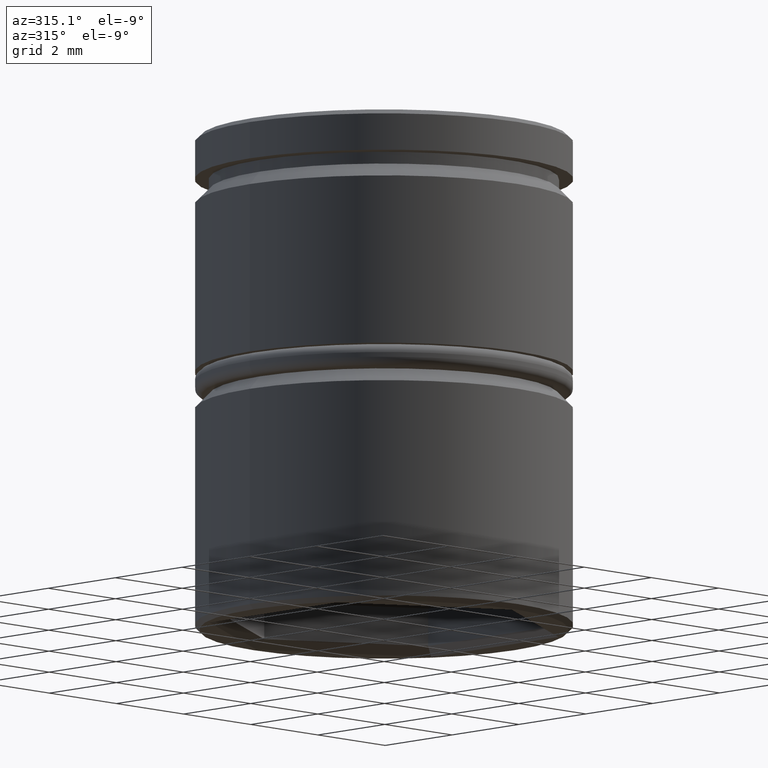
[diagram: clean part render]
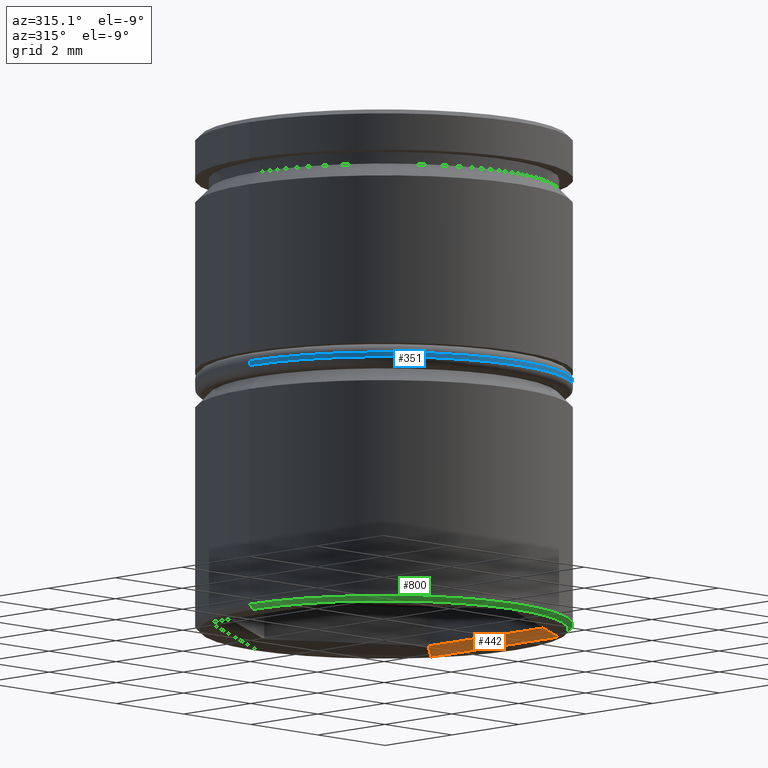
[diagram: same view with three faces highlighted in distinct colors, each labeled with its STEP entity id]
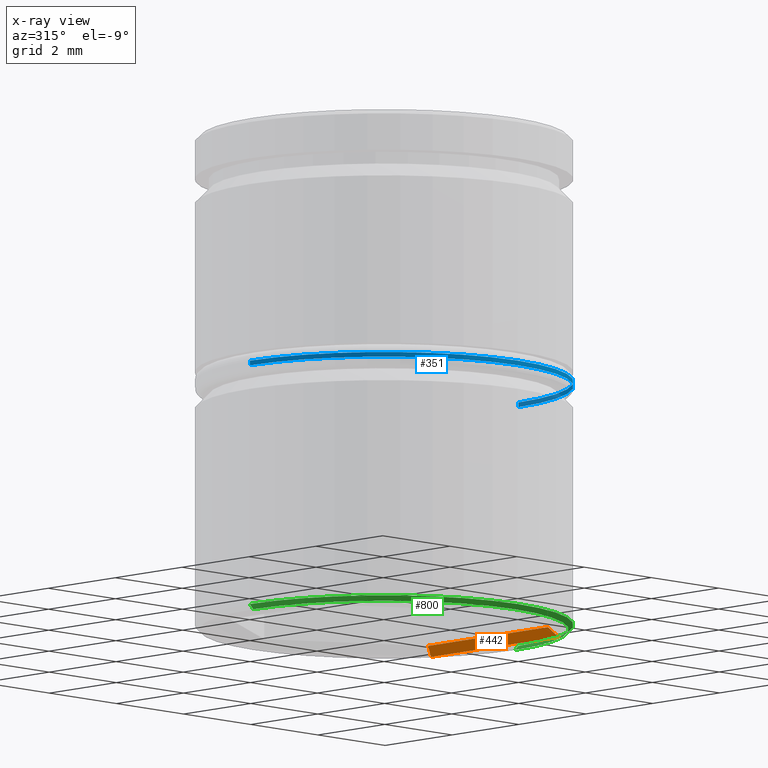
[diagram: x-ray of the same camera — body ghosted, the three highlighted faces saturated]
A machine part, auxiliary view with three faces highlighted in distinct colors.
The next image is the same camera in x-ray (body ghosted, the three faces saturated) — at least one of them is partly hidden behind the body in this view.
Their STEP definitions:

[orange] entity #442 — the highlighted planar face has unit normal (-0.7071, 0, -0.7071).
#3 = FACE_OUTER_BOUND ( 'NONE', #242, .T. ) ;
#66 = VERTEX_POINT ( 'NONE', #917 ) ;
#120 = CARTESIAN_POINT ( 'NONE',  ( 2.214285714285717077, 1.278418453205603544, -9.414285714285709261 ) ) ;
#203 = CARTESIAN_POINT ( 'NONE',  ( 3.299999999999999822, 1.905255888325763536, -10.50000000000000000 ) ) ;
#230 = EDGE_CURVE ( 'NONE', #66, #571, #798, .T. ) ;
#242 = EDGE_LOOP ( 'NONE', ( #928, #849, #968, #598 ) ) ;
#289 = EDGE_CURVE ( 'NONE', #464, #66, #335, .T. ) ;
#290 = DIRECTION ( 'NONE',  ( 0.6546536707079754214, 0.3779644730092244220, -0.6546536707079805284 ) ) ;
#335 = LINE ( 'NONE', #782, #616 ) ;
#359 = CARTESIAN_POINT ( 'NONE',  ( 3.299999999999999822, 1.789785834487839455, -10.50000000000000000 ) ) ;
#367 = AXIS2_PLACEMENT_3D ( 'NONE', #809, #911, #802 ) ;
#442 = ADVANCED_FACE ( 'NONE', ( #3 ), #916, .T. ) ;
#445 = DIRECTION ( 'NONE',  ( 1.211544031239644746E-16, 1.000000000000000000, 0.000000000000000000 ) ) ;
#464 = VERTEX_POINT ( 'NONE', #1001 ) ;
#470 = CARTESIAN_POINT ( 'NONE',  ( 3.100000000000000977, -1.789785834487840344, -10.30000000000000071 ) ) ;
#571 = VERTEX_POINT ( 'NONE', #737 ) ;
#590 = VERTEX_POINT ( 'NONE', #203 ) ;
#598 = ORIENTED_EDGE ( 'NONE', *, *, #289, .F. ) ;
#608 = DIRECTION ( 'NONE',  ( -1.211544031239644746E-16, -1.000000000000000000, 0.000000000000000000 ) ) ;
#616 = VECTOR ( 'NONE', #608, 1000.000000000000000 ) ;
#625 = LINE ( 'NONE', #359, #888 ) ;
#647 = LINE ( 'NONE', #120, #1054 ) ;
#737 = CARTESIAN_POINT ( 'NONE',  ( 3.299999999999999378, -1.905255888325763980, -10.50000000000000000 ) ) ;
#782 = CARTESIAN_POINT ( 'NONE',  ( 3.100000000000000977, -1.789785834487840344, -10.30000000000000071 ) ) ;
#798 = LINE ( 'NONE', #470, #1056 ) ;
#802 = DIRECTION ( 'NONE',  ( 1.211544031239644746E-16, 1.000000000000000000, 0.000000000000000000 ) ) ;
#809 = CARTESIAN_POINT ( 'NONE',  ( 3.100000000000000977, 1.789785834487839455, -10.30000000000000071 ) ) ;
#849 = ORIENTED_EDGE ( 'NONE', *, *, #890, .F. ) ;
#888 = VECTOR ( 'NONE', #445, 1000.000000000000000 ) ;
#890 = EDGE_CURVE ( 'NONE', #571, #590, #625, .T. ) ;
#911 = DIRECTION ( 'NONE',  ( -0.7071067811865503483, 8.566910001956425243E-17, -0.7071067811865447972 ) ) ;
#916 = PLANE ( 'NONE',  #367 ) ;
#917 = CARTESIAN_POINT ( 'NONE',  ( 3.100000000000000977, -1.789785834487840344, -10.30000000000000071 ) ) ;
#928 = ORIENTED_EDGE ( 'NONE', *, *, #995, .T. ) ;
#968 = ORIENTED_EDGE ( 'NONE', *, *, #230, .F. ) ;
#995 = EDGE_CURVE ( 'NONE', #464, #590, #647, .T. ) ;
#1001 = CARTESIAN_POINT ( 'NONE',  ( 3.100000000000000977, 1.789785834487839455, -10.30000000000000071 ) ) ;
#1009 = DIRECTION ( 'NONE',  ( 0.6546536707079758655, -0.3779644730092231453, -0.6546536707079808615 ) ) ;
#1054 = VECTOR ( 'NONE', #290, 999.9999999999998863 ) ;
#1056 = VECTOR ( 'NONE', #1009, 1000.000000000000000 ) ;

[blue] entity #351 — the highlighted cylindrical surface (partial cylindrical patch) has radius 4 mm, axis along (-0, -0, 1).
#15 = VECTOR ( 'NONE', #562, 1000.000000000000000 ) ;
#36 = CYLINDRICAL_SURFACE ( 'NONE', #368, 4.000000000000000000 ) ;
#54 = CARTESIAN_POINT ( 'NONE',  ( 0.000000000000000000, 0.000000000000000000, -5.299999999999998934 ) ) ;
#92 = CARTESIAN_POINT ( 'NONE',  ( 0.000000000000000000, 0.000000000000000000, -16.81370849898475939 ) ) ;
#97 = EDGE_CURVE ( 'NONE', #1032, #1139, #130, .T. ) ;
#105 = DIRECTION ( 'NONE',  ( 0.000000000000000000, 0.000000000000000000, -1.000000000000000000 ) ) ;
#130 = CIRCLE ( 'NONE', #579, 4.000000000000000000 ) ;
#146 = ORIENTED_EDGE ( 'NONE', *, *, #610, .T. ) ;
#228 = DIRECTION ( 'NONE',  ( -0.000000000000000000, -0.000000000000000000, 1.000000000000000000 ) ) ;
#252 = AXIS2_PLACEMENT_3D ( 'NONE', #54, #415, #774 ) ;
#286 = FACE_OUTER_BOUND ( 'NONE', #601, .T. ) ;
#317 = CARTESIAN_POINT ( 'NONE',  ( -4.000000000000000000, 4.898587196589412829E-16, -5.200000000000000178 ) ) ;
#351 = ADVANCED_FACE ( 'NONE', ( #286 ), #36, .T. ) ;
#368 = AXIS2_PLACEMENT_3D ( 'NONE', #92, #228, #589 ) ;
#376 = DIRECTION ( 'NONE',  ( -0.000000000000000000, -0.000000000000000000, 1.000000000000000000 ) ) ;
#415 = DIRECTION ( 'NONE',  ( 0.000000000000000000, 0.000000000000000000, 1.000000000000000000 ) ) ;
#465 = DIRECTION ( 'NONE',  ( -1.000000000000000000, 0.000000000000000000, 0.000000000000000000 ) ) ;
#494 = ORIENTED_EDGE ( 'NONE', *, *, #1025, .F. ) ;
#562 = DIRECTION ( 'NONE',  ( -0.000000000000000000, -0.000000000000000000, 1.000000000000000000 ) ) ;
#579 = AXIS2_PLACEMENT_3D ( 'NONE', #640, #105, #465 ) ;
#589 = DIRECTION ( 'NONE',  ( 1.000000000000000000, 0.000000000000000000, 0.000000000000000000 ) ) ;
#601 = EDGE_LOOP ( 'NONE', ( #494, #866, #146, #1114 ) ) ;
#610 = EDGE_CURVE ( 'NONE', #832, #1032, #1111, .T. ) ;
#640 = CARTESIAN_POINT ( 'NONE',  ( 0.000000000000000000, 0.000000000000000000, -5.200000000000000178 ) ) ;
#672 = CARTESIAN_POINT ( 'NONE',  ( 4.000000000000000000, 0.000000000000000000, -16.81370849898475939 ) ) ;
#682 = VERTEX_POINT ( 'NONE', #779 ) ;
#736 = CARTESIAN_POINT ( 'NONE',  ( -4.000000000000000000, 4.898587196589412829E-16, -16.81370849898475939 ) ) ;
#766 = CIRCLE ( 'NONE', #252, 4.000000000000000000 ) ;
#774 = DIRECTION ( 'NONE',  ( 1.000000000000000000, 0.000000000000000000, 0.000000000000000000 ) ) ;
#779 = CARTESIAN_POINT ( 'NONE',  ( -4.000000000000000000, 4.898587196589412829E-16, -5.299999999999998934 ) ) ;
#813 = EDGE_CURVE ( 'NONE', #682, #832, #766, .T. ) ;
#824 = LINE ( 'NONE', #736, #1138 ) ;
#832 = VERTEX_POINT ( 'NONE', #910 ) ;
#852 = CARTESIAN_POINT ( 'NONE',  ( 4.000000000000000000, 0.000000000000000000, -5.200000000000000178 ) ) ;
#866 = ORIENTED_EDGE ( 'NONE', *, *, #813, .T. ) ;
#910 = CARTESIAN_POINT ( 'NONE',  ( 4.000000000000000000, 0.000000000000000000, -5.299999999999998934 ) ) ;
#1025 = EDGE_CURVE ( 'NONE', #682, #1139, #824, .T. ) ;
#1032 = VERTEX_POINT ( 'NONE', #852 ) ;
#1111 = LINE ( 'NONE', #672, #15 ) ;
#1114 = ORIENTED_EDGE ( 'NONE', *, *, #97, .T. ) ;
#1138 = VECTOR ( 'NONE', #376, 1000.000000000000000 ) ;
#1139 = VERTEX_POINT ( 'NONE', #317 ) ;

[green] entity #800 — the highlighted conical surface has half-angle 45 deg.
#31 = LINE ( 'NONE', #390, #503 ) ;
#43 = VERTEX_POINT ( 'NONE', #906 ) ;
#53 = ORIENTED_EDGE ( 'NONE', *, *, #862, .F. ) ;
#59 = FACE_OUTER_BOUND ( 'NONE', #877, .T. ) ;
#69 = DIRECTION ( 'NONE',  ( -0.000000000000000000, -0.000000000000000000, 1.000000000000000000 ) ) ;
#229 = DIRECTION ( 'NONE',  ( 1.000000000000000000, 0.000000000000000000, 0.000000000000000000 ) ) ;
#245 = ORIENTED_EDGE ( 'NONE', *, *, #706, .T. ) ;
#250 = DIRECTION ( 'NONE',  ( -0.000000000000000000, -0.000000000000000000, 1.000000000000000000 ) ) ;
#305 = DIRECTION ( 'NONE',  ( -0.7071067811865474617, 8.659560562354932858E-17, 0.7071067811865474617 ) ) ;
#329 = LINE ( 'NONE', #883, #784 ) ;
#390 = CARTESIAN_POINT ( 'NONE',  ( -4.000000000000000000, 4.898587196589412829E-16, -10.40000000000000213 ) ) ;
#395 = VERTEX_POINT ( 'NONE', #899 ) ;
#469 = CONICAL_SURFACE ( 'NONE', #612, 4.000000000000000000, 0.7853981633974482790 ) ;
#503 = VECTOR ( 'NONE', #305, 1000.000000000000114 ) ;
#519 = ORIENTED_EDGE ( 'NONE', *, *, #938, .F. ) ;
#526 = CARTESIAN_POINT ( 'NONE',  ( 0.000000000000000000, 0.000000000000000000, -10.50000000000000000 ) ) ;
#595 = DIRECTION ( 'NONE',  ( 0.7071067811865474617, 0.000000000000000000, 0.7071067811865474617 ) ) ;
#612 = AXIS2_PLACEMENT_3D ( 'NONE', #889, #69, #229 ) ;
#657 = AXIS2_PLACEMENT_3D ( 'NONE', #806, #250, #1064 ) ;
#668 = EDGE_CURVE ( 'NONE', #894, #395, #31, .T. ) ;
#706 = EDGE_CURVE ( 'NONE', #43, #853, #329, .T. ) ;
#722 = CARTESIAN_POINT ( 'NONE',  ( -3.900000000000000799, 4.837354856632045057E-16, -10.50000000000000000 ) ) ;
#725 = CIRCLE ( 'NONE', #903, 3.900000000000000799 ) ;
#784 = VECTOR ( 'NONE', #595, 1000.000000000000114 ) ;
#799 = CARTESIAN_POINT ( 'NONE',  ( 4.000000000000000000, 0.000000000000000000, -10.40000000000000213 ) ) ;
#800 = ADVANCED_FACE ( 'NONE', ( #59 ), #469, .T. ) ;
#806 = CARTESIAN_POINT ( 'NONE',  ( 0.000000000000000000, 0.000000000000000000, -10.40000000000000213 ) ) ;
#853 = VERTEX_POINT ( 'NONE', #799 ) ;
#862 = EDGE_CURVE ( 'NONE', #395, #853, #1172, .T. ) ;
#877 = EDGE_LOOP ( 'NONE', ( #964, #519, #245, #53 ) ) ;
#883 = CARTESIAN_POINT ( 'NONE',  ( 4.000000000000000000, 0.000000000000000000, -10.40000000000000213 ) ) ;
#889 = CARTESIAN_POINT ( 'NONE',  ( 0.000000000000000000, 0.000000000000000000, -10.40000000000000213 ) ) ;
#894 = VERTEX_POINT ( 'NONE', #722 ) ;
#896 = DIRECTION ( 'NONE',  ( 0.000000000000000000, 0.000000000000000000, -1.000000000000000000 ) ) ;
#899 = CARTESIAN_POINT ( 'NONE',  ( -4.000000000000000000, 4.898587196589412829E-16, -10.40000000000000213 ) ) ;
#903 = AXIS2_PLACEMENT_3D ( 'NONE', #526, #896, #1085 ) ;
#906 = CARTESIAN_POINT ( 'NONE',  ( 3.900000000000000799, 0.000000000000000000, -10.50000000000000000 ) ) ;
#938 = EDGE_CURVE ( 'NONE', #43, #894, #725, .T. ) ;
#964 = ORIENTED_EDGE ( 'NONE', *, *, #668, .F. ) ;
#1064 = DIRECTION ( 'NONE',  ( -1.000000000000000000, 0.000000000000000000, 0.000000000000000000 ) ) ;
#1085 = DIRECTION ( 'NONE',  ( -1.000000000000000000, 0.000000000000000000, 0.000000000000000000 ) ) ;
#1172 = CIRCLE ( 'NONE', #657, 4.000000000000000000 ) ;